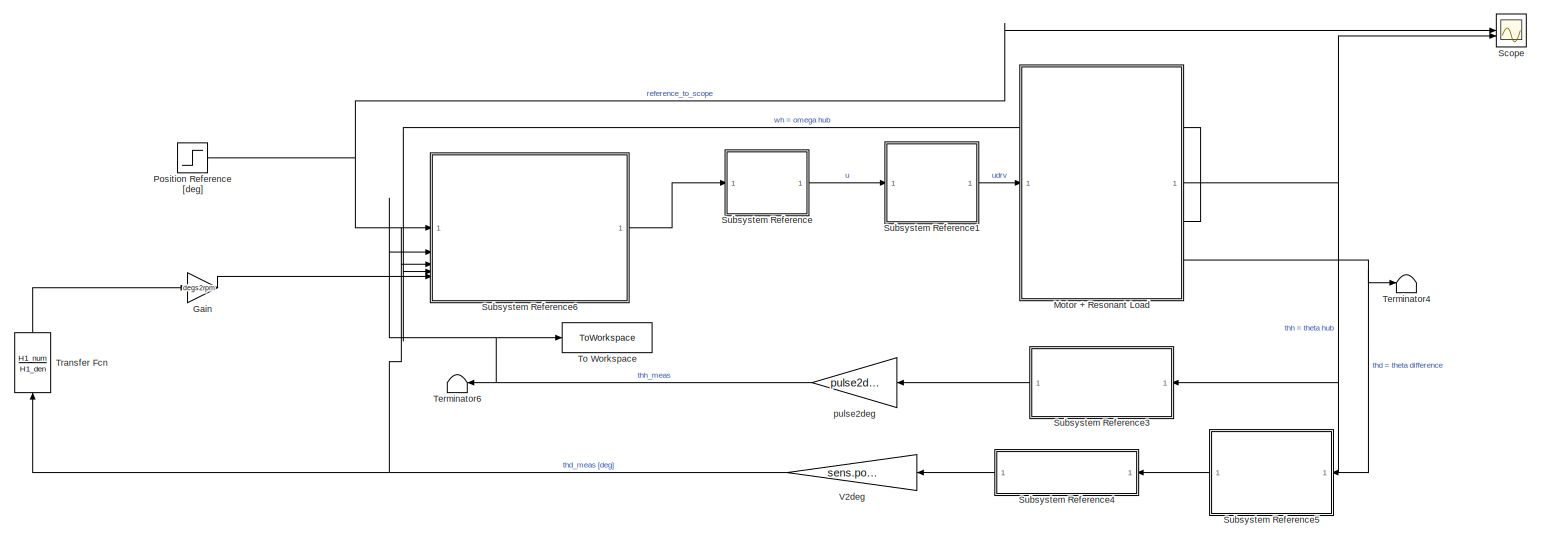
[diagram: root canvas - part 1/2, most of the canvas]
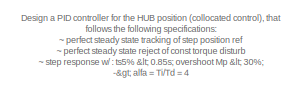
[diagram: root canvas - part 2/2, top left region]
MODEL slx_f2601132f713
KIND model
CONFIG AbsTol = auto
CONFIG EnableMultiTasking = off
CONFIG FixedStep = auto
CONFIG MaxStep = auto
CONFIG MinStep = auto
CONFIG RelTol = 1e-2
CONFIG SampleTimeConstraint = Unconstrained
CONFIG SolverName = ode45
CONFIG StartTime = 0.0
CONFIG StopTime = 5
BLOCK [Gain] Gain
  Gain = degs2rpm
BLOCK [SubSystem] Motor + Resonant Load
  ReferencedSubsystem = DC_gearmotor_resonant_load
BLOCK [Step] Position Reference [deg]
  After = 50
  SampleTime = 0
BLOCK [Scope] Scope
  Floating = off
  NumInputPorts = 2
  ScopeSpecificationString = Simulink.scopes.TimeScopeBlockCfg('CurrentConfiguration', extmgr.ConfigurationSet(extmgr.Configuration('Core','General UI',true),extmgr.Configuration('Core','Source UI',true),extmgr.Configuration('Sources','WiredSimulink',true),extmgr.Configuration('Visuals','Time Domain',true,'SerializedDisplays',{struct('MinYLimReal','-408.39413','MaxYLimReal','411.17232','YLabelReal','','MinYLimMag',' 0.00000',...<+1530ch>
BLOCK [SubSystem] Subsystem Reference
  ReferencedSubsystem = DAC
BLOCK [SubSystem] Subsystem Reference1
  ReferencedSubsystem = Voltage_driver
BLOCK [SubSystem] Subsystem Reference3
  ReferencedSubsystem = Encoder
BLOCK [SubSystem] Subsystem Reference4
  ReferencedSubsystem = ADC
BLOCK [SubSystem] Subsystem Reference5
  ReferencedSubsystem = Potentiometer_2
BLOCK [SubSystem] Subsystem Reference6
  ReferencedSubsystem = ss_controller_nomtracking
BLOCK [Terminator] Terminator4
BLOCK [Terminator] Terminator6
BLOCK [ToWorkspace] To Workspace
  FixptAsFi = on
  MaxDataPoints = inf
  SampleTime = -1
  SaveFormat = Timeseries
  VariableName = pos_meas_hub
BLOCK [TransferFcn] Transfer Fcn
  Denominator = H1_den
  NameLocation = right
  Numerator = H1_num
BLOCK [Gain] V2deg
  Gain = sens.pot2.V2deg
BLOCK [Gain] pulse2deg
  Gain = pulse2deg
ANNOTATION (root): Design a PID controller for the HUB position (collocated control), that follows the following specifications: ~ perfect steady state tracking of step position ref ~ perfect steady state reject of const torque disturb ~ step response w/ : ts5% < 0.85s; overshoot Mp < 30%; -> alfa = Ti/Td = 4 -> derivative action with H(s) = s / (Tl*s + 1) -> where 1/Tl = 10*wgc -> for the antiwup Kw = 1/Tw, Tw = ts...<+7ch>
LINE Gain:1 -> Subsystem Reference6:5
NET Motor + Resonant Load:1 -> Scope:2, Subsystem Reference3:1
LINE Motor + Resonant Load:2 -> Subsystem Reference6:4
NET Motor + Resonant Load:5 -> Subsystem Reference5:1, Terminator4:1
NET Position Reference [deg]:1 -> Scope:1, Subsystem Reference6:1
LINE Subsystem Reference1:1 -> Motor + Resonant Load:1
LINE Subsystem Reference3:1 -> pulse2deg:1
LINE Subsystem Reference4:1 -> V2deg:1
LINE Subsystem Reference5:1 -> Subsystem Reference4:1
LINE Subsystem Reference6:1 -> Subsystem Reference:1
LINE Subsystem Reference:1 -> Subsystem Reference1:1
LINE Transfer Fcn:1 -> Gain:1
NET V2deg:1 -> Subsystem Reference6:3, Transfer Fcn:1
NET pulse2deg:1 -> Subsystem Reference6:2, Terminator6:1, To Workspace:1
note: NET lines group one-source signal fan-out (src -> all destinations, sorted); 1:1 wires keep LINE
